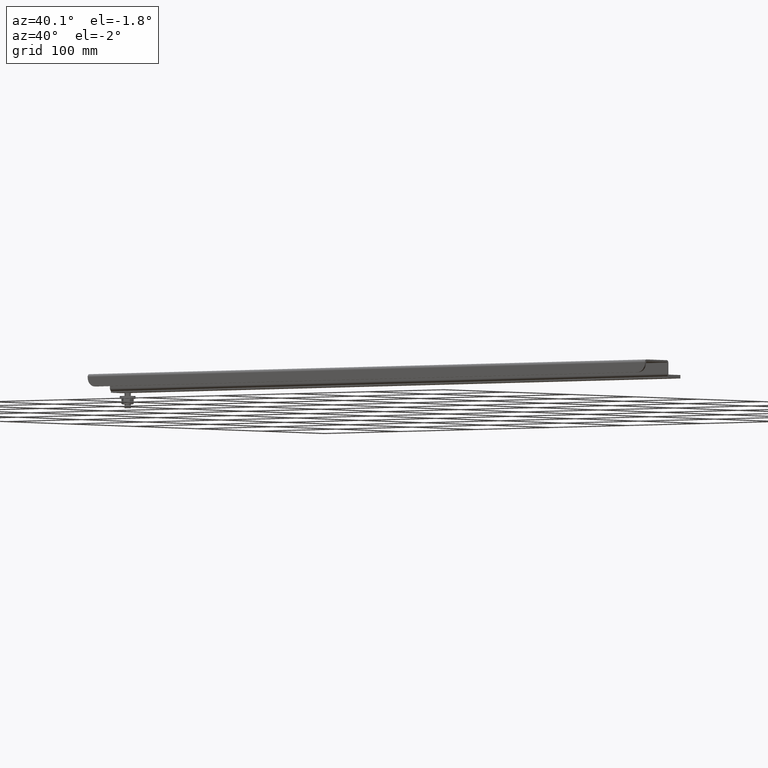
[diagram: clean part render]
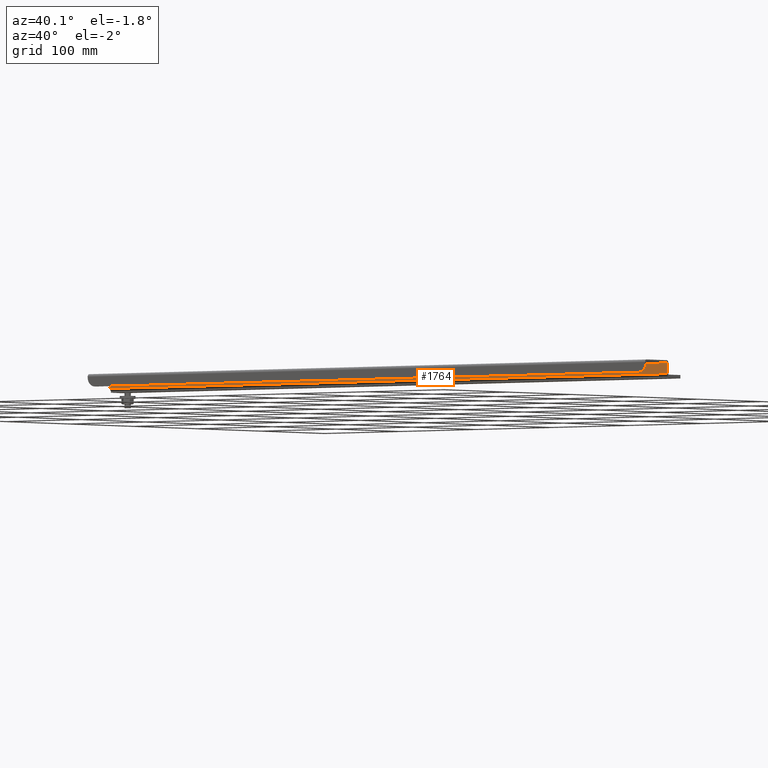
[diagram: same view with one face highlighted and labeled with its STEP entity id]
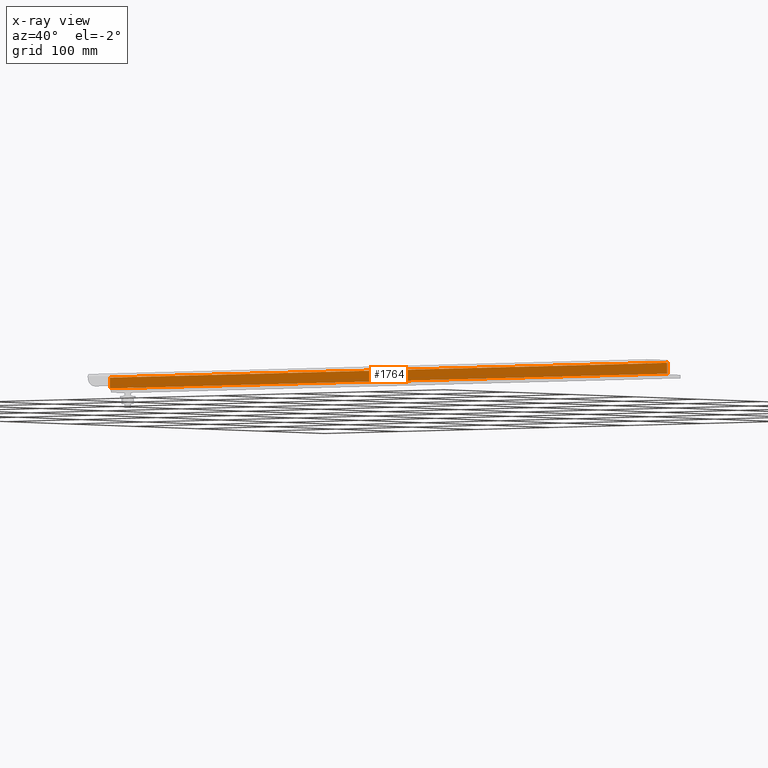
[diagram: x-ray of the same camera — body ghosted, the highlighted face saturated]
A machine part, auxiliary view. The second image highlights one B-rep face of the part: STEP entity #1764.
The next image is the same camera in x-ray: the body ghosted, the highlighted face saturated — about 0% of this face is hidden behind the body in this view.
In plain terms, the highlighted planar face has unit normal (0, -1, -0).
Its self-contained STEP definition (entity closure, byte-faithful):
#48 = CARTESIAN_POINT ( 'NONE',  ( 14.50000000000000178, 0.2814999999999999725, 0.5000000000000000000 ) ) ;
#103 = CARTESIAN_POINT ( 'NONE',  ( 14.50000000000000178, 0.2814999999999999725, 0.03599999999999988626 ) ) ;
#113 = DIRECTION ( 'NONE',  ( 0.0000000000000000000, 0.0000000000000000000, 1.000000000000000000 ) ) ;
#211 = VECTOR ( 'NONE', #1014, 39.37007874015748143 ) ;
#370 = VERTEX_POINT ( 'NONE', #1032 ) ;
#384 = ORIENTED_EDGE ( 'NONE', *, *, #1733, .F. ) ;
#435 = PLANE ( 'NONE',  #1262 ) ;
#476 = EDGE_CURVE ( 'NONE', #1103, #370, #1820, .T. ) ;
#615 = CARTESIAN_POINT ( 'NONE',  ( -14.50000000000000178, 0.2815000000000000280, 0.03599999999999976830 ) ) ;
#744 = VERTEX_POINT ( 'NONE', #103 ) ;
#817 = EDGE_LOOP ( 'NONE', ( #384, #1935, #1748, #2223 ) ) ;
#854 = EDGE_CURVE ( 'NONE', #2320, #370, #2505, .T. ) ;
#1014 = DIRECTION ( 'NONE',  ( 0.0000000000000000000, 0.0000000000000000000, -1.000000000000000000 ) ) ;
#1032 = CARTESIAN_POINT ( 'NONE',  ( -14.50000000000000178, 0.2814999999999999725, 0.4640000000000000790 ) ) ;
#1103 = VERTEX_POINT ( 'NONE', #1553 ) ;
#1188 = DIRECTION ( 'NONE',  ( 1.000000000000000000, 0.0000000000000000000, 0.0000000000000000000 ) ) ;
#1245 = DIRECTION ( 'NONE',  ( -1.000000000000000000, -2.523582145300259971E-34, 4.121322404234880307E-18 ) ) ;
#1262 = AXIS2_PLACEMENT_3D ( 'NONE', #1586, #2145, #1598 ) ;
#1553 = CARTESIAN_POINT ( 'NONE',  ( 14.50000000000000178, 0.2814999999999999725, 0.4639999999999999680 ) ) ;
#1554 = LINE ( 'NONE', #615, #1752 ) ;
#1586 = CARTESIAN_POINT ( 'NONE',  ( -14.50000000000000178, 0.2815000000000000280, 0.03599999999999996259 ) ) ;
#1598 = DIRECTION ( 'NONE',  ( 0.0000000000000000000, 6.123233995736769734E-17, -1.000000000000000000 ) ) ;
#1700 = VECTOR ( 'NONE', #1245, 39.37007874015748143 ) ;
#1733 = EDGE_CURVE ( 'NONE', #1103, #744, #1756, .T. ) ;
#1748 = ORIENTED_EDGE ( 'NONE', *, *, #854, .F. ) ;
#1752 = VECTOR ( 'NONE', #1188, 39.37007874015748143 ) ;
#1756 = LINE ( 'NONE', #48, #211 ) ;
#1764 = ADVANCED_FACE ( 'NONE', ( #2166 ), #435, .T. ) ;
#1820 = LINE ( 'NONE', #2381, #1700 ) ;
#1873 = CARTESIAN_POINT ( 'NONE',  ( -14.50000000000000178, 0.2814999999999999725, 0.5000000000000000000 ) ) ;
#1935 = ORIENTED_EDGE ( 'NONE', *, *, #476, .T. ) ;
#2144 = VECTOR ( 'NONE', #113, 39.37007874015748143 ) ;
#2145 = DIRECTION ( 'NONE',  ( 0.0000000000000000000, -1.000000000000000000, -6.123233995736769734E-17 ) ) ;
#2166 = FACE_OUTER_BOUND ( 'NONE', #817, .T. ) ;
#2175 = CARTESIAN_POINT ( 'NONE',  ( -14.50000000000000178, 0.2814999999999999725, 0.03599999999999988626 ) ) ;
#2208 = EDGE_CURVE ( 'NONE', #2320, #744, #1554, .T. ) ;
#2223 = ORIENTED_EDGE ( 'NONE', *, *, #2208, .T. ) ;
#2320 = VERTEX_POINT ( 'NONE', #2175 ) ;
#2381 = CARTESIAN_POINT ( 'NONE',  ( -14.50000000000000178, 0.2814999999999999725, 0.4640000000000001346 ) ) ;
#2505 = LINE ( 'NONE', #1873, #2144 ) ;